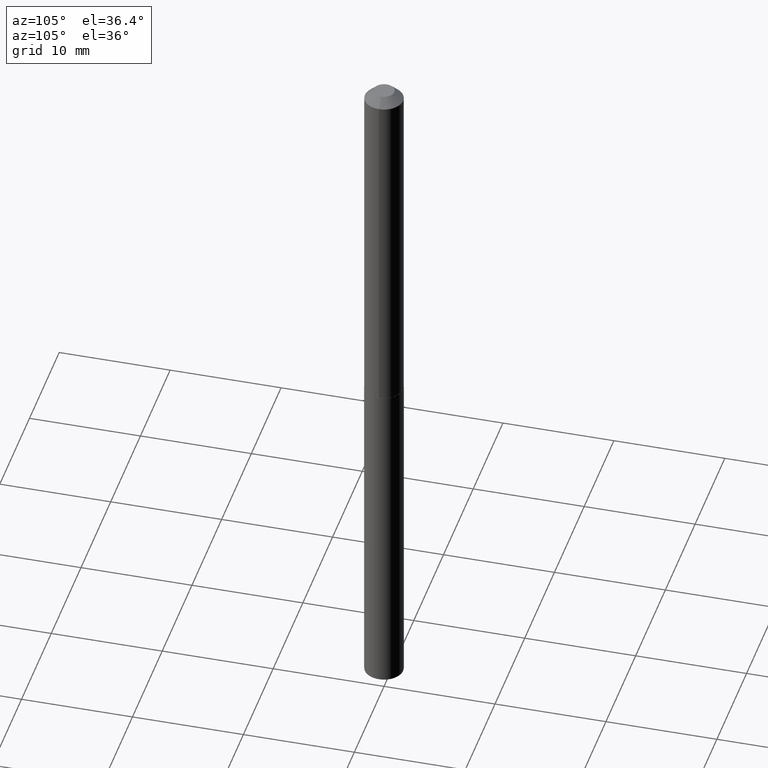
[diagram: clean part render]
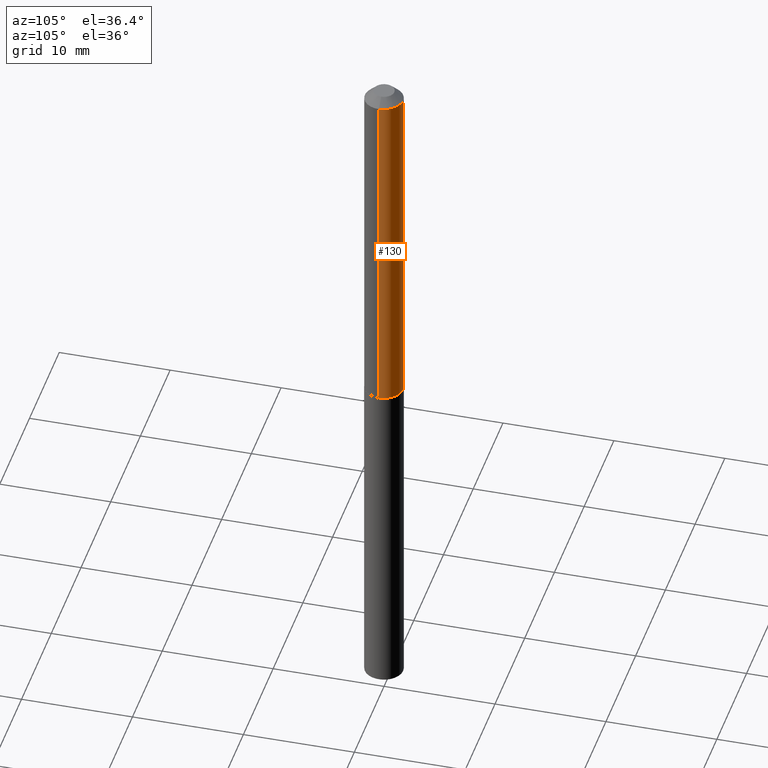
[diagram: same view with one face highlighted and labeled with its STEP entity id]
A machine part, auxiliary view. The second image highlights one B-rep face of the part: STEP entity #130.
In plain terms, the highlighted cylindrical surface (edge-blend (fillet) strip) has radius 1.7272 mm, axis along (-0, 0, 1).
Its self-contained STEP definition (entity closure, byte-faithful):
#15 = VECTOR ( 'NONE', #370, 39.37007874015748143 ) ;
#26 = ORIENTED_EDGE ( 'NONE', *, *, #41, .F. ) ;
#41 = EDGE_CURVE ( 'NONE', #360, #384, #152, .T. ) ;
#48 = CARTESIAN_POINT ( 'NONE',  ( -0.06800000000000000488, -1.771891449408448412E-15, -0.03125000000000020123 ) ) ;
#55 = ORIENTED_EDGE ( 'NONE', *, *, #282, .F. ) ;
#64 = AXIS2_PLACEMENT_3D ( 'NONE', #247, #225, #98 ) ;
#74 = DIRECTION ( 'NONE',  ( 1.000000000000000000, -6.982962677686267499E-15, 0.000000000000000000 ) ) ;
#81 = ORIENTED_EDGE ( 'NONE', *, *, #329, .T. ) ;
#98 = DIRECTION ( 'NONE',  ( 1.000000000000000000, -6.982962677686265922E-15, 4.876176775795935232E-29 ) ) ;
#102 = CIRCLE ( 'NONE', #193, 0.06800000000000000488 ) ;
#103 = LINE ( 'NONE', #255, #387 ) ;
#111 = DIRECTION ( 'NONE',  ( 1.000000000000000000, -6.982962677686272233E-15, 0.000000000000000000 ) ) ;
#124 = CYLINDRICAL_SURFACE ( 'NONE', #64, 0.06800000000000008815 ) ;
#130 = ADVANCED_FACE ( 'NONE', ( #250 ), #124, .T. ) ;
#152 = LINE ( 'NONE', #252, #15 ) ;
#161 = CARTESIAN_POINT ( 'NONE',  ( -0.06800000000000017142, -3.917843167294917857E-15, -1.260500000000000620 ) ) ;
#162 = DIRECTION ( 'NONE',  ( -2.445468806185136877E-29, 3.491481338843145188E-15, 1.000000000000000000 ) ) ;
#166 = DIRECTION ( 'NONE',  ( -2.445468806185136597E-29, 3.491481338843145583E-15, 1.000000000000000000 ) ) ;
#193 = AXIS2_PLACEMENT_3D ( 'NONE', #311, #307, #74 ) ;
#194 = EDGE_CURVE ( 'NONE', #235, #208, #103, .T. ) ;
#203 = CIRCLE ( 'NONE', #245, 0.06800000000000017142 ) ;
#208 = VERTEX_POINT ( 'NONE', #48 ) ;
#225 = DIRECTION ( 'NONE',  ( -2.445468806185136597E-29, 3.491481338843145583E-15, 1.000000000000000000 ) ) ;
#234 = CARTESIAN_POINT ( 'NONE',  ( 0.06800000000000017142, -4.875853689694455105E-15, -1.260500000000000620 ) ) ;
#235 = VERTEX_POINT ( 'NONE', #161 ) ;
#245 = AXIS2_PLACEMENT_3D ( 'NONE', #286, #166, #111 ) ;
#247 = CARTESIAN_POINT ( 'NONE',  ( 0.000000000000000000, 0.000000000000000000, 0.000000000000000000 ) ) ;
#250 = FACE_OUTER_BOUND ( 'NONE', #373, .T. ) ;
#252 = CARTESIAN_POINT ( 'NONE',  ( 0.06800000000000008815, -4.748414620826667201E-16, 3.315800207541240207E-30 ) ) ;
#255 = CARTESIAN_POINT ( 'NONE',  ( -0.06800000000000008815, 4.831690603168687527E-16, -3.344875861373340259E-30 ) ) ;
#282 = EDGE_CURVE ( 'NONE', #384, #208, #102, .T. ) ;
#286 = CARTESIAN_POINT ( 'NONE',  ( 3.082513430196366214E-29, -4.401012227611787991E-15, -1.260500000000000620 ) ) ;
#307 = DIRECTION ( 'NONE',  ( -2.445468806185136597E-29, 3.491481338843145583E-15, 1.000000000000000000 ) ) ;
#311 = CARTESIAN_POINT ( 'NONE',  ( 7.642090019328601786E-31, -1.091087918388490144E-16, -0.03125000000000020123 ) ) ;
#327 = ORIENTED_EDGE ( 'NONE', *, *, #194, .T. ) ;
#329 = EDGE_CURVE ( 'NONE', #360, #235, #203, .T. ) ;
#360 = VERTEX_POINT ( 'NONE', #234 ) ;
#370 = DIRECTION ( 'NONE',  ( -2.445468806185136877E-29, 3.491481338843145188E-15, 1.000000000000000000 ) ) ;
#373 = EDGE_LOOP ( 'NONE', ( #81, #327, #55, #26 ) ) ;
#384 = VERTEX_POINT ( 'NONE', #385 ) ;
#385 = CARTESIAN_POINT ( 'NONE',  ( 0.06800000000000000488, -5.839502539215152291E-16, -0.03125000000000020123 ) ) ;
#387 = VECTOR ( 'NONE', #162, 39.37007874015748143 ) ;